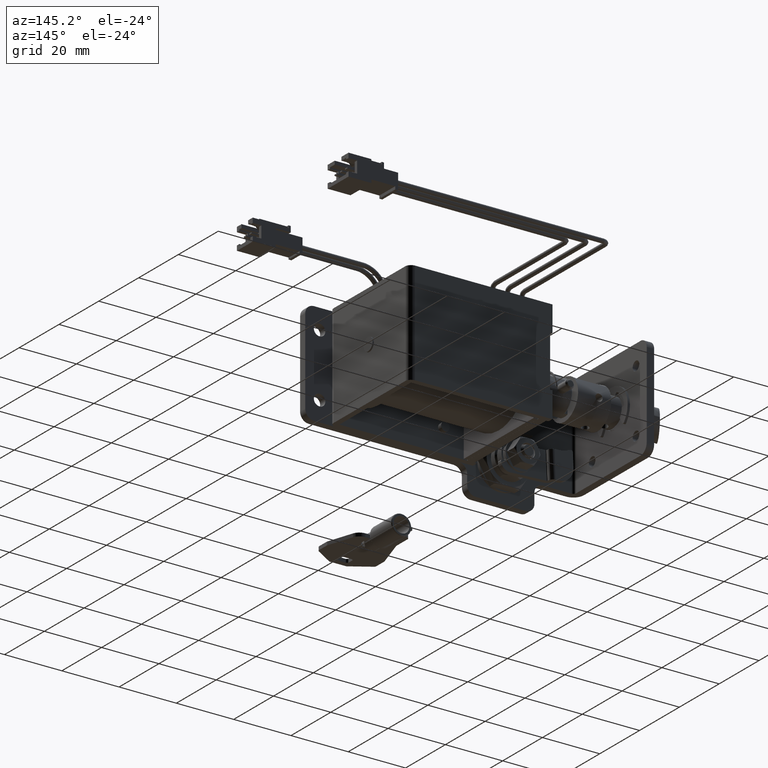
[diagram: clean part render]
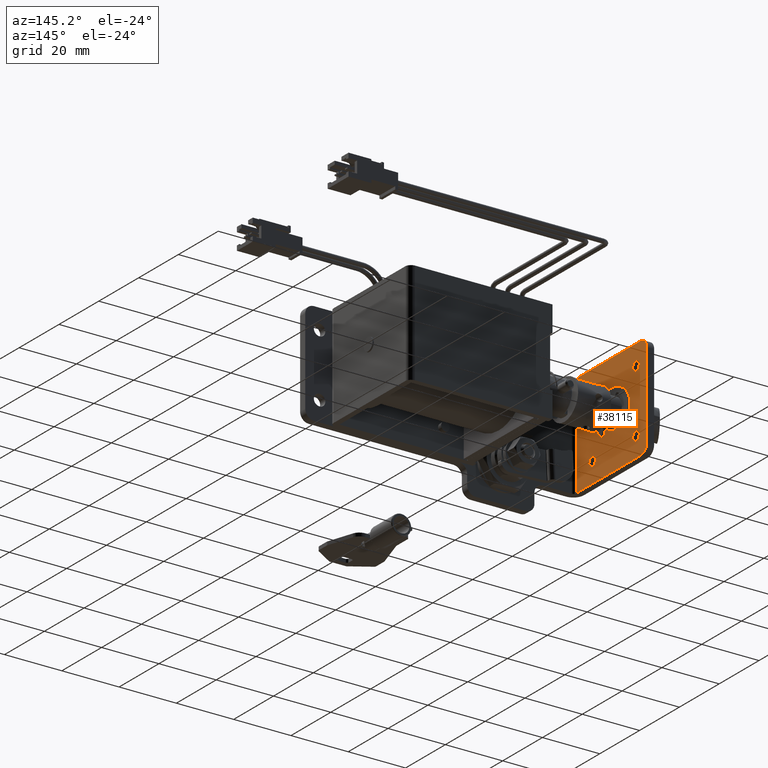
[diagram: same view with one face highlighted and labeled with its STEP entity id]
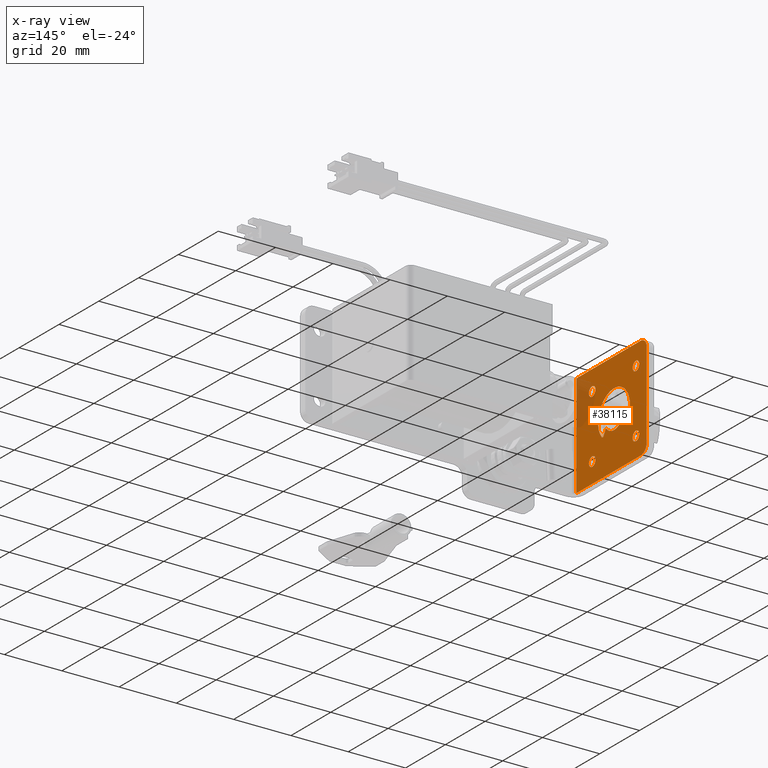
[diagram: x-ray of the same camera — body ghosted, the highlighted face saturated]
A machine part, auxiliary view. The second image highlights one B-rep face of the part: STEP entity #38115.
The next image is the same camera in x-ray: the body ghosted, the highlighted face saturated — about 10% of this face is hidden behind the body in this view.
In plain terms, the highlighted face is a freeform B-spline surface patch.
Its self-contained STEP definition (entity closure, byte-faithful):
#31565=CARTESIAN_POINT('',(-25.900000000001050,17.420999989303152,10.979999981461781));
#31566=VERTEX_POINT('',#31565);
#31567=CARTESIAN_POINT('',(-25.900000000001050,18.538201828291449,12.915880091125720));
#31568=VERTEX_POINT('',#31567);
#31569=CARTESIAN_POINT('',(-25.900000000001050,17.420999989303152,10.979999981461781));
#31570=CARTESIAN_POINT('',(-25.900000000001050,18.538201828291449,12.915880091125720));
#31571=QUASI_UNIFORM_CURVE('',1,(#31569,#31570),.UNSPECIFIED.,.F.,.U.);
#31572=EDGE_CURVE('',#31566,#31568,#31571,.T.);
#31609=CARTESIAN_POINT('',(-25.900000000001050,26.661999158652101,12.916144809639819));
#31610=VERTEX_POINT('',#31609);
#35087=CARTESIAN_POINT('',(-25.900000000001050,9.953077582713590,4.899269908018256));
#35088=VERTEX_POINT('',#35087);
#35094=CARTESIAN_POINT('',(-25.900000000001050,11.600000000002240,3.350000000007300));
#35095=VERTEX_POINT('',#35094);
#35096=CARTESIAN_POINT('',(-25.900000000001050,11.600000000002240,3.350000000007300));
#35097=CARTESIAN_POINT('',(-25.900000000001054,10.047834991266400,3.350000000007300));
#35098=CARTESIAN_POINT('',(-25.900000000001050,9.953077582713590,4.899269908018256));
#35106=(BOUNDED_CURVE()B_SPLINE_CURVE(2,(#35096,#35097,#35098),.UNSPECIFIED.,.F.,.U.)B_SPLINE_CURVE_WITH_KNOTS((3,3),(0.500000000000000,0.739332962057938),.UNSPECIFIED.)CURVE()GEOMETRIC_REPRESENTATION_ITEM()RATIONAL_B_SPLINE_CURVE((1.0,0.719603993498771,0.976072041278790))REPRESENTATION_ITEM(''));
#35107=EDGE_CURVE('',#35095,#35088,#35106,.T.);
#35109=CARTESIAN_POINT('',(-25.900000000001050,13.246922417290889,5.100730091996344));
#35110=VERTEX_POINT('',#35109);
#35111=CARTESIAN_POINT('',(-25.900000000001050,13.246922417290889,5.100730091996343));
#35112=CARTESIAN_POINT('',(-25.900000000001050,13.250000000002244,5.050412060330698));
#35113=CARTESIAN_POINT('',(-25.900000000001050,13.250000000002240,5.000000000007300));
#35114=CARTESIAN_POINT('',(-25.900000000001057,13.250000000002238,3.350000000007300));
#35115=CARTESIAN_POINT('',(-25.900000000001050,11.600000000002240,3.350000000007300));
#35123=(BOUNDED_CURVE()B_SPLINE_CURVE(2,(#35111,#35112,#35113,#35114,#35115),.UNSPECIFIED.,.F.,.U.)B_SPLINE_CURVE_WITH_KNOTS((3,2,3),(0.239332962057938,0.250000000000000,0.500000000000000),.UNSPECIFIED.)CURVE()GEOMETRIC_REPRESENTATION_ITEM()RATIONAL_B_SPLINE_CURVE((0.976072041278790,0.987502787687777,1.0,0.707106781186548,1.0))REPRESENTATION_ITEM(''));
#35124=EDGE_CURVE('',#35110,#35095,#35123,.T.);
#35168=CARTESIAN_POINT('',(-25.900000000001050,11.600000000002240,6.650000000007299));
#35169=VERTEX_POINT('',#35168);
#35170=CARTESIAN_POINT('',(-25.900000000001050,11.600000000002240,6.650000000007299));
#35171=CARTESIAN_POINT('',(-25.900000000001057,13.152165008738077,6.650000000007299));
#35172=CARTESIAN_POINT('',(-25.900000000001050,13.246922417290889,5.100730091996343));
#35180=(BOUNDED_CURVE()B_SPLINE_CURVE(2,(#35170,#35171,#35172),.UNSPECIFIED.,.F.,.U.)B_SPLINE_CURVE_WITH_KNOTS((3,3),(0.0,0.239332962057938),.UNSPECIFIED.)CURVE()GEOMETRIC_REPRESENTATION_ITEM()RATIONAL_B_SPLINE_CURVE((1.0,0.719603993498771,0.976072041278790))REPRESENTATION_ITEM(''));
#35181=EDGE_CURVE('',#35169,#35110,#35180,.T.);
#35183=CARTESIAN_POINT('',(-25.900000000001050,9.953077582713590,4.899269908018256));
#35184=CARTESIAN_POINT('',(-25.900000000001054,9.950000000002238,4.949587939683902));
#35185=CARTESIAN_POINT('',(-25.900000000001050,9.950000000002238,5.000000000007300));
#35186=CARTESIAN_POINT('',(-25.900000000001057,9.950000000002238,6.650000000007299));
#35187=CARTESIAN_POINT('',(-25.900000000001050,11.600000000002240,6.650000000007299));
#35195=(BOUNDED_CURVE()B_SPLINE_CURVE(2,(#35183,#35184,#35185,#35186,#35187),.UNSPECIFIED.,.F.,.U.)B_SPLINE_CURVE_WITH_KNOTS((3,2,3),(0.739332962057938,0.750000000000000,1.0),.UNSPECIFIED.)CURVE()GEOMETRIC_REPRESENTATION_ITEM()RATIONAL_B_SPLINE_CURVE((0.976072041278790,0.987502787687777,1.0,0.707106781186548,1.0))REPRESENTATION_ITEM(''));
#35196=EDGE_CURVE('',#35088,#35169,#35195,.T.);
#35269=CARTESIAN_POINT('',(-25.900000000001050,9.953077582711773,26.899269908010961));
#35270=VERTEX_POINT('',#35269);
#35276=CARTESIAN_POINT('',(-25.900000000001050,11.600000000000421,25.350000000000001));
#35277=VERTEX_POINT('',#35276);
#35278=CARTESIAN_POINT('',(-25.900000000001050,11.600000000000421,25.350000000000001));
#35279=CARTESIAN_POINT('',(-25.900000000001054,10.047834991264581,25.349999999999991));
#35280=CARTESIAN_POINT('',(-25.900000000001050,9.953077582711773,26.899269908010961));
#35288=(BOUNDED_CURVE()B_SPLINE_CURVE(2,(#35278,#35279,#35280),.UNSPECIFIED.,.F.,.U.)B_SPLINE_CURVE_WITH_KNOTS((3,3),(0.500000000000000,0.739332962057938),.UNSPECIFIED.)CURVE()GEOMETRIC_REPRESENTATION_ITEM()RATIONAL_B_SPLINE_CURVE((1.0,0.719603993498771,0.976072041278790))REPRESENTATION_ITEM(''));
#35289=EDGE_CURVE('',#35277,#35270,#35288,.T.);
#35291=CARTESIAN_POINT('',(-25.900000000001050,13.246922417289070,27.100730091989039));
#35292=VERTEX_POINT('',#35291);
#35293=CARTESIAN_POINT('',(-25.900000000001054,13.246922417289063,27.100730091989050));
#35294=CARTESIAN_POINT('',(-25.900000000001054,13.250000000000419,27.050412060323396));
#35295=CARTESIAN_POINT('',(-25.900000000001050,13.250000000000419,27.0));
#35296=CARTESIAN_POINT('',(-25.900000000001057,13.250000000000417,25.350000000000001));
#35297=CARTESIAN_POINT('',(-25.900000000001050,11.600000000000421,25.350000000000001));
#35305=(BOUNDED_CURVE()B_SPLINE_CURVE(2,(#35293,#35294,#35295,#35296,#35297),.UNSPECIFIED.,.F.,.U.)B_SPLINE_CURVE_WITH_KNOTS((3,2,3),(0.239332962057938,0.250000000000000,0.500000000000000),.UNSPECIFIED.)CURVE()GEOMETRIC_REPRESENTATION_ITEM()RATIONAL_B_SPLINE_CURVE((0.976072041278790,0.987502787687777,1.0,0.707106781186548,1.0))REPRESENTATION_ITEM(''));
#35306=EDGE_CURVE('',#35292,#35277,#35305,.T.);
#35350=CARTESIAN_POINT('',(-25.900000000001050,11.600000000000421,28.649999999999999));
#35351=VERTEX_POINT('',#35350);
#35352=CARTESIAN_POINT('',(-25.900000000001050,11.600000000000421,28.649999999999999));
#35353=CARTESIAN_POINT('',(-25.900000000001050,13.152165008736254,28.649999999999995));
#35354=CARTESIAN_POINT('',(-25.900000000001057,13.246922417289070,27.100730091989039));
#35362=(BOUNDED_CURVE()B_SPLINE_CURVE(2,(#35352,#35353,#35354),.UNSPECIFIED.,.F.,.U.)B_SPLINE_CURVE_WITH_KNOTS((3,3),(0.0,0.239332962057938),.UNSPECIFIED.)CURVE()GEOMETRIC_REPRESENTATION_ITEM()RATIONAL_B_SPLINE_CURVE((1.0,0.719603993498771,0.976072041278790))REPRESENTATION_ITEM(''));
#35363=EDGE_CURVE('',#35351,#35292,#35362,.T.);
#35365=CARTESIAN_POINT('',(-25.900000000001050,9.953077582711773,26.899269908010961));
#35366=CARTESIAN_POINT('',(-25.900000000001054,9.950000000000419,26.949587939676608));
#35367=CARTESIAN_POINT('',(-25.900000000001050,9.950000000000419,27.0));
#35368=CARTESIAN_POINT('',(-25.900000000001057,9.950000000000419,28.649999999999988));
#35369=CARTESIAN_POINT('',(-25.900000000001050,11.600000000000421,28.649999999999999));
#35377=(BOUNDED_CURVE()B_SPLINE_CURVE(2,(#35365,#35366,#35367,#35368,#35369),.UNSPECIFIED.,.F.,.U.)B_SPLINE_CURVE_WITH_KNOTS((3,2,3),(0.739332962057938,0.750000000000000,1.0),.UNSPECIFIED.)CURVE()GEOMETRIC_REPRESENTATION_ITEM()RATIONAL_B_SPLINE_CURVE((0.976072041278790,0.987502787687777,1.0,0.707106781186548,1.0))REPRESENTATION_ITEM(''));
#35378=EDGE_CURVE('',#35270,#35351,#35377,.T.);
#35451=CARTESIAN_POINT('',(-25.900000000001050,31.953077582711749,4.899269908010956));
#35452=VERTEX_POINT('',#35451);
#35458=CARTESIAN_POINT('',(-25.900000000001050,33.600000000000399,3.350000000000000));
#35459=VERTEX_POINT('',#35458);
#35460=CARTESIAN_POINT('',(-25.900000000001050,33.600000000000399,3.350000000000000));
#35461=CARTESIAN_POINT('',(-25.900000000001054,32.047834991264558,3.350000000000000));
#35462=CARTESIAN_POINT('',(-25.900000000001050,31.953077582711757,4.899269908010955));
#35470=(BOUNDED_CURVE()B_SPLINE_CURVE(2,(#35460,#35461,#35462),.UNSPECIFIED.,.F.,.U.)B_SPLINE_CURVE_WITH_KNOTS((3,3),(0.500000000000000,0.739332962057938),.UNSPECIFIED.)CURVE()GEOMETRIC_REPRESENTATION_ITEM()RATIONAL_B_SPLINE_CURVE((1.0,0.719603993498771,0.976072041278790))REPRESENTATION_ITEM(''));
#35471=EDGE_CURVE('',#35459,#35452,#35470,.T.);
#35473=CARTESIAN_POINT('',(-25.900000000001050,35.246922417289042,5.100730091989044));
#35474=VERTEX_POINT('',#35473);
#35475=CARTESIAN_POINT('',(-25.900000000001050,35.246922417289042,5.100730091989044));
#35476=CARTESIAN_POINT('',(-25.900000000001054,35.250000000000398,5.050412060323399));
#35477=CARTESIAN_POINT('',(-25.900000000001050,35.250000000000398,5.0));
#35478=CARTESIAN_POINT('',(-25.900000000001057,35.250000000000391,3.350000000000000));
#35479=CARTESIAN_POINT('',(-25.900000000001050,33.600000000000399,3.350000000000000));
#35487=(BOUNDED_CURVE()B_SPLINE_CURVE(2,(#35475,#35476,#35477,#35478,#35479),.UNSPECIFIED.,.F.,.U.)B_SPLINE_CURVE_WITH_KNOTS((3,2,3),(0.239332962057938,0.250000000000000,0.500000000000000),.UNSPECIFIED.)CURVE()GEOMETRIC_REPRESENTATION_ITEM()RATIONAL_B_SPLINE_CURVE((0.976072041278790,0.987502787687777,1.0,0.707106781186548,1.0))REPRESENTATION_ITEM(''));
#35488=EDGE_CURVE('',#35474,#35459,#35487,.T.);
#35532=CARTESIAN_POINT('',(-25.900000000001050,33.600000000000399,6.650000000000000));
#35533=VERTEX_POINT('',#35532);
#35534=CARTESIAN_POINT('',(-25.900000000001050,33.600000000000399,6.650000000000000));
#35535=CARTESIAN_POINT('',(-25.900000000001054,35.152165008736233,6.650000000000000));
#35536=CARTESIAN_POINT('',(-25.900000000001050,35.246922417289042,5.100730091989044));
#35544=(BOUNDED_CURVE()B_SPLINE_CURVE(2,(#35534,#35535,#35536),.UNSPECIFIED.,.F.,.U.)B_SPLINE_CURVE_WITH_KNOTS((3,3),(0.0,0.239332962057938),.UNSPECIFIED.)CURVE()GEOMETRIC_REPRESENTATION_ITEM()RATIONAL_B_SPLINE_CURVE((1.0,0.719603993498771,0.976072041278790))REPRESENTATION_ITEM(''));
#35545=EDGE_CURVE('',#35533,#35474,#35544,.T.);
#35547=CARTESIAN_POINT('',(-25.900000000001050,31.953077582711757,4.899269908010955));
#35548=CARTESIAN_POINT('',(-25.900000000001054,31.950000000000404,4.949587939676601));
#35549=CARTESIAN_POINT('',(-25.900000000001050,31.950000000000401,5.0));
#35550=CARTESIAN_POINT('',(-25.900000000001057,31.950000000000404,6.649999999999999));
#35551=CARTESIAN_POINT('',(-25.900000000001050,33.600000000000399,6.650000000000000));
#35559=(BOUNDED_CURVE()B_SPLINE_CURVE(2,(#35547,#35548,#35549,#35550,#35551),.UNSPECIFIED.,.F.,.U.)B_SPLINE_CURVE_WITH_KNOTS((3,2,3),(0.739332962057938,0.750000000000000,1.0),.UNSPECIFIED.)CURVE()GEOMETRIC_REPRESENTATION_ITEM()RATIONAL_B_SPLINE_CURVE((0.976072041278790,0.987502787687777,1.0,0.707106781186548,1.0))REPRESENTATION_ITEM(''));
#35560=EDGE_CURVE('',#35452,#35533,#35559,.T.);
#35695=CARTESIAN_POINT('',(-25.900000000001050,26.661999158652101,12.916144809639819));
#35696=CARTESIAN_POINT('',(-25.900000000001050,26.380940951018680,12.545665817133671));
#35697=CARTESIAN_POINT('',(-25.900000000001111,25.803866184880210,11.969829901198381));
#35698=CARTESIAN_POINT('',(-25.900000000000979,24.900485814647730,11.419584779603580));
#35699=CARTESIAN_POINT('',(-25.900000000001050,23.964056825670440,11.051621252066161));
#35700=CARTESIAN_POINT('',(-25.900000000001100,23.042221476219300,10.883896602735060));
#35701=CARTESIAN_POINT('',(-25.900000000001029,21.888528720783611,10.908767815338541));
#35702=CARTESIAN_POINT('',(-25.900000000001128,20.663926258854591,11.204975606546670));
#35703=CARTESIAN_POINT('',(-25.900000000000858,19.443245972831271,11.912916662897540));
#35704=CARTESIAN_POINT('',(-25.900000000001270,18.789755519573220,12.584482977573209));
#35705=CARTESIAN_POINT('',(-25.900000000001050,18.538201828291449,12.915880091125720));
#35706=B_SPLINE_CURVE_WITH_KNOTS('',3,(#35695,#35696,#35697,#35698,#35699,#35700,#35701,#35702,#35703,#35704,#35705),.UNSPECIFIED.,.F.,.U.,(4,1,1,1,1,1,1,1,4),(0.000000321934545,1.395040655548342,2.423023667480848,3.157274182883942,4.405564487782328,5.213110755396506,6.608237163273246,8.150206372131361,9.398390355084036),.UNSPECIFIED.);
#35707=EDGE_CURVE('',#31610,#31568,#35706,.T.);
#35810=CARTESIAN_POINT('',(-25.900000000001050,31.953077582711760,26.899269908010961));
#35811=VERTEX_POINT('',#35810);
#35817=CARTESIAN_POINT('',(-25.900000000001050,33.600000000000399,25.350000000000001));
#35818=VERTEX_POINT('',#35817);
#35819=CARTESIAN_POINT('',(-25.900000000001050,33.600000000000399,25.350000000000001));
#35820=CARTESIAN_POINT('',(-25.900000000001054,32.047834991264558,25.349999999999991));
#35821=CARTESIAN_POINT('',(-25.900000000001050,31.953077582711757,26.899269908010961));
#35829=(BOUNDED_CURVE()B_SPLINE_CURVE(2,(#35819,#35820,#35821),.UNSPECIFIED.,.F.,.U.)B_SPLINE_CURVE_WITH_KNOTS((3,3),(0.500000000000000,0.739332962057938),.UNSPECIFIED.)CURVE()GEOMETRIC_REPRESENTATION_ITEM()RATIONAL_B_SPLINE_CURVE((1.0,0.719603993498771,0.976072041278790))REPRESENTATION_ITEM(''));
#35830=EDGE_CURVE('',#35818,#35811,#35829,.T.);
#35832=CARTESIAN_POINT('',(-25.900000000001050,35.246922417289042,27.100730091989039));
#35833=VERTEX_POINT('',#35832);
#35834=CARTESIAN_POINT('',(-25.900000000001054,35.246922417289056,27.100730091989050));
#35835=CARTESIAN_POINT('',(-25.900000000001054,35.250000000000405,27.050412060323396));
#35836=CARTESIAN_POINT('',(-25.900000000001050,35.250000000000398,27.0));
#35837=CARTESIAN_POINT('',(-25.900000000001057,35.250000000000391,25.350000000000001));
#35838=CARTESIAN_POINT('',(-25.900000000001050,33.600000000000399,25.350000000000001));
#35846=(BOUNDED_CURVE()B_SPLINE_CURVE(2,(#35834,#35835,#35836,#35837,#35838),.UNSPECIFIED.,.F.,.U.)B_SPLINE_CURVE_WITH_KNOTS((3,2,3),(0.239332962057938,0.250000000000000,0.500000000000000),.UNSPECIFIED.)CURVE()GEOMETRIC_REPRESENTATION_ITEM()RATIONAL_B_SPLINE_CURVE((0.976072041278790,0.987502787687777,1.0,0.707106781186548,1.0))REPRESENTATION_ITEM(''));
#35847=EDGE_CURVE('',#35833,#35818,#35846,.T.);
#35891=CARTESIAN_POINT('',(-25.900000000001050,33.600000000000399,28.649999999999999));
#35892=VERTEX_POINT('',#35891);
#35893=CARTESIAN_POINT('',(-25.900000000001050,33.600000000000399,28.649999999999999));
#35894=CARTESIAN_POINT('',(-25.900000000001054,35.152165008736233,28.649999999999999));
#35895=CARTESIAN_POINT('',(-25.900000000001050,35.246922417289042,27.100730091989043));
#35903=(BOUNDED_CURVE()B_SPLINE_CURVE(2,(#35893,#35894,#35895),.UNSPECIFIED.,.F.,.U.)B_SPLINE_CURVE_WITH_KNOTS((3,3),(0.0,0.239332962057939),.UNSPECIFIED.)CURVE()GEOMETRIC_REPRESENTATION_ITEM()RATIONAL_B_SPLINE_CURVE((1.0,0.719603993498770,0.976072041278791))REPRESENTATION_ITEM(''));
#35904=EDGE_CURVE('',#35892,#35833,#35903,.T.);
#35906=CARTESIAN_POINT('',(-25.900000000001050,31.953077582711757,26.899269908010961));
#35907=CARTESIAN_POINT('',(-25.900000000001054,31.950000000000404,26.949587939676608));
#35908=CARTESIAN_POINT('',(-25.900000000001050,31.950000000000401,27.0));
#35909=CARTESIAN_POINT('',(-25.900000000001057,31.950000000000404,28.649999999999988));
#35910=CARTESIAN_POINT('',(-25.900000000001050,33.600000000000399,28.649999999999999));
#35918=(BOUNDED_CURVE()B_SPLINE_CURVE(2,(#35906,#35907,#35908,#35909,#35910),.UNSPECIFIED.,.F.,.U.)B_SPLINE_CURVE_WITH_KNOTS((3,2,3),(0.739332962057938,0.750000000000000,1.0),.UNSPECIFIED.)CURVE()GEOMETRIC_REPRESENTATION_ITEM()RATIONAL_B_SPLINE_CURVE((0.976072041278790,0.987502787687777,1.0,0.707106781186548,1.0))REPRESENTATION_ITEM(''));
#35919=EDGE_CURVE('',#35811,#35892,#35918,.T.);
#37500=CARTESIAN_POINT('',(-25.900000000001050,16.438881212395000,10.897158222202901));
#37501=VERTEX_POINT('',#37500);
#37502=CARTESIAN_POINT('',(-25.900000000001050,16.438881212395000,10.897158222202901));
#37503=CARTESIAN_POINT('',(-25.900000000000990,16.507828413115611,10.813393438993151));
#37504=CARTESIAN_POINT('',(-25.900000000001139,16.641329034638790,10.721112751687221));
#37505=CARTESIAN_POINT('',(-25.900000000000979,16.890210293548190,10.666203995727290));
#37506=CARTESIAN_POINT('',(-25.900000000001121,17.098669120936350,10.696508753637991));
#37507=CARTESIAN_POINT('',(-25.900000000000968,17.297696031961799,10.814807021283171));
#37508=CARTESIAN_POINT('',(-25.900000000001150,17.384918982294639,10.917381149587129));
#37509=CARTESIAN_POINT('',(-25.900000000001050,17.420999989303152,10.979999981461781));
#37510=B_SPLINE_CURVE_WITH_KNOTS('',3,(#37502,#37503,#37504,#37505,#37506,#37507,#37508,#37509),.UNSPECIFIED.,.F.,.U.,(4,1,1,1,1,4),(0.000000811068887,0.325262671492471,0.469866329395309,0.758903358855315,0.939651033739294,1.156472599420903),.UNSPECIFIED.);
#37511=EDGE_CURVE('',#37501,#31566,#37510,.T.);
#37557=CARTESIAN_POINT('',(-25.900000000001050,28.761222744767402,10.897283743841600));
#37558=VERTEX_POINT('',#37557);
#37559=CARTESIAN_POINT('',(-25.900000000001050,28.761222744767402,10.897283743841600));
#37560=CARTESIAN_POINT('',(-25.900000000001050,29.182273612221319,11.405387108049560));
#37561=CARTESIAN_POINT('',(-25.900000000001079,29.744037812159529,12.286384163874059));
#37562=CARTESIAN_POINT('',(-25.900000000001011,30.364916695753202,13.870153342595760));
#37563=CARTESIAN_POINT('',(-25.900000000001128,30.644119961743900,15.412451226769120));
#37564=CARTESIAN_POINT('',(-25.900000000001040,30.570726559329941,17.163217960547151));
#37565=CARTESIAN_POINT('',(-25.900000000001050,30.214137412110681,18.588717676358339));
#37566=CARTESIAN_POINT('',(-25.900000000001139,29.575584684575521,20.011382485397920));
#37567=CARTESIAN_POINT('',(-25.900000000000880,28.790253046126129,21.141089568513120));
#37568=CARTESIAN_POINT('',(-25.900000000001249,27.611879912554720,22.301532265775052));
#37569=CARTESIAN_POINT('',(-25.900000000001089,26.264127693017588,23.190963971795210));
#37570=CARTESIAN_POINT('',(-25.900000000001029,24.485280985602220,23.847368109384629));
#37571=CARTESIAN_POINT('',(-25.900000000000670,22.741329552163439,24.064251349105682));
#37572=CARTESIAN_POINT('',(-25.900000000001249,20.997346379119570,23.894016786832491));
#37573=CARTESIAN_POINT('',(-25.900000000000929,19.231421133919518,23.347064880175019));
#37574=CARTESIAN_POINT('',(-25.900000000001111,17.727970898826261,22.429439575181060));
#37575=CARTESIAN_POINT('',(-25.900000000001022,16.436743283299212,21.179913943216420));
#37576=CARTESIAN_POINT('',(-25.900000000001079,15.624316597171140,20.011229373282340));
#37577=CARTESIAN_POINT('',(-25.900000000001050,14.985826090096211,18.588547983341119));
#37578=CARTESIAN_POINT('',(-25.900000000001111,14.617703159834020,17.117059338960019));
#37579=CARTESIAN_POINT('',(-25.900000000000919,14.559806848452480,15.364172520651090));
#37580=CARTESIAN_POINT('',(-25.900000000001501,14.852444962124091,13.826029427499320));
#37581=CARTESIAN_POINT('',(-25.899999999999761,15.455986205525420,12.286221013387200));
#37582=CARTESIAN_POINT('',(-25.900000000002329,16.017858322201011,11.405274569683771));
#37583=CARTESIAN_POINT('',(-25.900000000001050,16.438881212395000,10.897158222202901));
#37584=B_SPLINE_CURVE_WITH_KNOTS('',3,(#37559,#37560,#37561,#37562,#37563,#37564,#37565,#37566,#37567,#37568,#37569,#37570,#37571,#37572,#37573,#37574,#37575,#37576,#37577,#37578,#37579,#37580,#37581,#37582,#37583),.UNSPECIFIED.,.F.,.U.,(4,1,1,1,1,1,1,1,1,1,1,1,1,1,1,1,1,1,1,1,1,1,4),(0.000000377049140,1.979629981733076,3.110855783230015,5.090580459771534,6.646076241090352,8.342961922449213,9.474245925269997,11.312539763812421,12.443604687993711,14.423280410626321,16.120193895285020,18.099904233556650,19.655383757200330,21.352274400480681,23.614766475428642,24.887262119695269,26.725562995519820,27.856867441277888,29.553742994347608,31.250615074327388,33.088913048777059,34.220181631946090,36.199802143714479),.UNSPECIFIED.);
#37585=EDGE_CURVE('',#37558,#37501,#37584,.T.);
#37641=CARTESIAN_POINT('',(-25.900000000001050,27.767224220340051,11.002124991826420));
#37642=VERTEX_POINT('',#37641);
#37643=CARTESIAN_POINT('',(-25.900000000001050,27.767224220340051,11.002124991826420));
#37644=CARTESIAN_POINT('',(-25.900000000001029,27.807015304053479,10.925710315659430));
#37645=CARTESIAN_POINT('',(-25.900000000001050,27.896044890884141,10.819660890485681));
#37646=CARTESIAN_POINT('',(-25.900000000001050,28.066635357486639,10.718418456802610));
#37647=CARTESIAN_POINT('',(-25.900000000001050,28.247140116805749,10.670579850918930));
#37648=CARTESIAN_POINT('',(-25.900000000001071,28.509207117945440,10.691300950625640));
#37649=CARTESIAN_POINT('',(-25.900000000001050,28.683019207017491,10.802115258208181));
#37650=CARTESIAN_POINT('',(-25.900000000001050,28.761222744767402,10.897283743841600));
#37651=B_SPLINE_CURVE_WITH_KNOTS('',3,(#37643,#37644,#37645,#37646,#37647,#37648,#37649,#37650),.UNSPECIFIED.,.F.,.U.,(4,1,1,1,1,4),(0.000000506489855,0.258417757411586,0.406110081930521,0.590680085438879,0.812164788880750,1.181359295339040),.UNSPECIFIED.);
#37652=EDGE_CURVE('',#37642,#37558,#37651,.T.);
#37743=CARTESIAN_POINT('',(-25.900000000001000,3.600000000000365,-1.999999999999800));
#37744=VERTEX_POINT('',#37743);
#37758=CARTESIAN_POINT('',(-25.900000000001000,3.600000000000365,34.0));
#37759=VERTEX_POINT('',#37758);
#37760=CARTESIAN_POINT('',(-25.900000000001000,3.600000000000365,34.0));
#37761=CARTESIAN_POINT('',(-25.900000000001000,3.600000000000365,-1.999999999999800));
#37762=QUASI_UNIFORM_CURVE('',1,(#37760,#37761),.UNSPECIFIED.,.F.,.U.);
#37763=EDGE_CURVE('',#37759,#37744,#37762,.T.);
#37796=CARTESIAN_POINT('',(-25.900000000001000,39.0,31.0));
#37797=VERTEX_POINT('',#37796);
#37798=CARTESIAN_POINT('',(-25.900000000001000,36.0,34.0));
#37799=VERTEX_POINT('',#37798);
#37800=CARTESIAN_POINT('',(-25.900000000001000,39.0,31.0));
#37801=CARTESIAN_POINT('',(-25.900000000001004,39.000000000000007,34.000000000000007));
#37802=CARTESIAN_POINT('',(-25.900000000001000,36.0,34.0));
#37810=(BOUNDED_CURVE()B_SPLINE_CURVE(2,(#37800,#37801,#37802),.UNSPECIFIED.,.F.,.U.)CURVE()GEOMETRIC_REPRESENTATION_ITEM()QUASI_UNIFORM_CURVE()RATIONAL_B_SPLINE_CURVE((1.0,0.707106781186548,1.0))REPRESENTATION_ITEM(''));
#37811=EDGE_CURVE('',#37797,#37799,#37810,.T.);
#37882=CARTESIAN_POINT('',(-25.900000000001000,36.0,-1.999999999999800));
#37883=VERTEX_POINT('',#37882);
#37884=CARTESIAN_POINT('',(-25.900000000001000,39.0,1.0));
#37885=VERTEX_POINT('',#37884);
#37886=CARTESIAN_POINT('',(-25.900000000001000,36.0,-1.999999999999800));
#37887=CARTESIAN_POINT('',(-25.900000000001057,39.000000000000007,-2.000000000000000));
#37888=CARTESIAN_POINT('',(-25.900000000001050,39.0,1.0));
#37896=(BOUNDED_CURVE()B_SPLINE_CURVE(2,(#37886,#37887,#37888),.UNSPECIFIED.,.F.,.U.)CURVE()GEOMETRIC_REPRESENTATION_ITEM()QUASI_UNIFORM_CURVE()RATIONAL_B_SPLINE_CURVE((1.0,0.707106781186548,1.0))REPRESENTATION_ITEM(''));
#37897=EDGE_CURVE('',#37883,#37885,#37896,.T.);
#37959=CARTESIAN_POINT('',(-25.900000000001000,39.0,1.0));
#37960=CARTESIAN_POINT('',(-25.900000000001000,39.0,31.0));
#37961=QUASI_UNIFORM_CURVE('',1,(#37959,#37960),.UNSPECIFIED.,.F.,.U.);
#37962=EDGE_CURVE('',#37885,#37797,#37961,.T.);
#38035=CARTESIAN_POINT('',(-25.900000000001000,3.600000000000365,-1.999999999999800));
#38036=CARTESIAN_POINT('',(-25.900000000001000,36.0,-1.999999999999800));
#38037=QUASI_UNIFORM_CURVE('',1,(#38035,#38036),.UNSPECIFIED.,.F.,.U.);
#38038=EDGE_CURVE('',#37744,#37883,#38037,.T.);
#38057=CARTESIAN_POINT('',(-25.900000000001000,36.0,34.0));
#38058=CARTESIAN_POINT('',(-25.900000000001000,3.600000000000365,34.0));
#38059=QUASI_UNIFORM_CURVE('',1,(#38057,#38058),.UNSPECIFIED.,.F.,.U.);
#38060=EDGE_CURVE('',#37799,#37759,#38059,.T.);
#38066=CARTESIAN_POINT('',(-25.900000000001000,40.768229931387907,-3.798199930224806));
#38067=CARTESIAN_POINT('',(-25.900000000000990,1.831769119110463,-3.798199930224806));
#38068=CARTESIAN_POINT('',(-25.900000000000990,40.768229931387907,35.798200895820251));
#38069=CARTESIAN_POINT('',(-25.900000000000990,1.831769119110463,35.798200895820251));
#38070=B_SPLINE_SURFACE_WITH_KNOTS('',1,1,((#38066,#38068),(#38067,#38069)),.UNSPECIFIED.,.F.,.F.,.U.,(2,2),(2,2),(0.0,38.936460812277453),(0.0,39.596400826045063),.UNSPECIFIED.);
#38071=ORIENTED_EDGE('',*,*,#38060,.T.);
#38072=ORIENTED_EDGE('',*,*,#37763,.T.);
#38073=ORIENTED_EDGE('',*,*,#38038,.T.);
#38074=ORIENTED_EDGE('',*,*,#37897,.T.);
#38075=ORIENTED_EDGE('',*,*,#37962,.T.);
#38076=ORIENTED_EDGE('',*,*,#37811,.T.);
#38077=EDGE_LOOP('',(#38071,#38072,#38073,#38074,#38075,#38076));
#38078=FACE_OUTER_BOUND('',#38077,.T.);
#38079=ORIENTED_EDGE('',*,*,#31572,.F.);
#38080=ORIENTED_EDGE('',*,*,#37511,.F.);
#38081=ORIENTED_EDGE('',*,*,#37585,.F.);
#38082=ORIENTED_EDGE('',*,*,#37652,.F.);
#38083=CARTESIAN_POINT('',(-25.900000000001050,26.661999158652101,12.916144809639819));
#38084=CARTESIAN_POINT('',(-25.900000000001050,27.767224220340051,11.002124991826420));
#38085=QUASI_UNIFORM_CURVE('',1,(#38083,#38084),.UNSPECIFIED.,.F.,.U.);
#38086=EDGE_CURVE('',#31610,#37642,#38085,.T.);
#38087=ORIENTED_EDGE('',*,*,#38086,.F.);
#38088=ORIENTED_EDGE('',*,*,#35707,.T.);
#38089=EDGE_LOOP('',(#38079,#38080,#38081,#38082,#38087,#38088));
#38090=FACE_BOUND('',#38089,.T.);
#38091=ORIENTED_EDGE('',*,*,#35830,.T.);
#38092=ORIENTED_EDGE('',*,*,#35919,.T.);
#38093=ORIENTED_EDGE('',*,*,#35904,.T.);
#38094=ORIENTED_EDGE('',*,*,#35847,.T.);
#38095=EDGE_LOOP('',(#38091,#38092,#38093,#38094));
#38096=FACE_BOUND('',#38095,.T.);
#38097=ORIENTED_EDGE('',*,*,#35471,.T.);
#38098=ORIENTED_EDGE('',*,*,#35560,.T.);
#38099=ORIENTED_EDGE('',*,*,#35545,.T.);
#38100=ORIENTED_EDGE('',*,*,#35488,.T.);
#38101=EDGE_LOOP('',(#38097,#38098,#38099,#38100));
#38102=FACE_BOUND('',#38101,.T.);
#38103=ORIENTED_EDGE('',*,*,#35289,.T.);
#38104=ORIENTED_EDGE('',*,*,#35378,.T.);
#38105=ORIENTED_EDGE('',*,*,#35363,.T.);
#38106=ORIENTED_EDGE('',*,*,#35306,.T.);
#38107=EDGE_LOOP('',(#38103,#38104,#38105,#38106));
#38108=FACE_BOUND('',#38107,.T.);
#38109=ORIENTED_EDGE('',*,*,#35107,.T.);
#38110=ORIENTED_EDGE('',*,*,#35196,.T.);
#38111=ORIENTED_EDGE('',*,*,#35181,.T.);
#38112=ORIENTED_EDGE('',*,*,#35124,.T.);
#38113=EDGE_LOOP('',(#38109,#38110,#38111,#38112));
#38114=FACE_BOUND('',#38113,.T.);
#38115=ADVANCED_FACE('',(#38078,#38090,#38096,#38102,#38108,#38114),#38070,.F.);